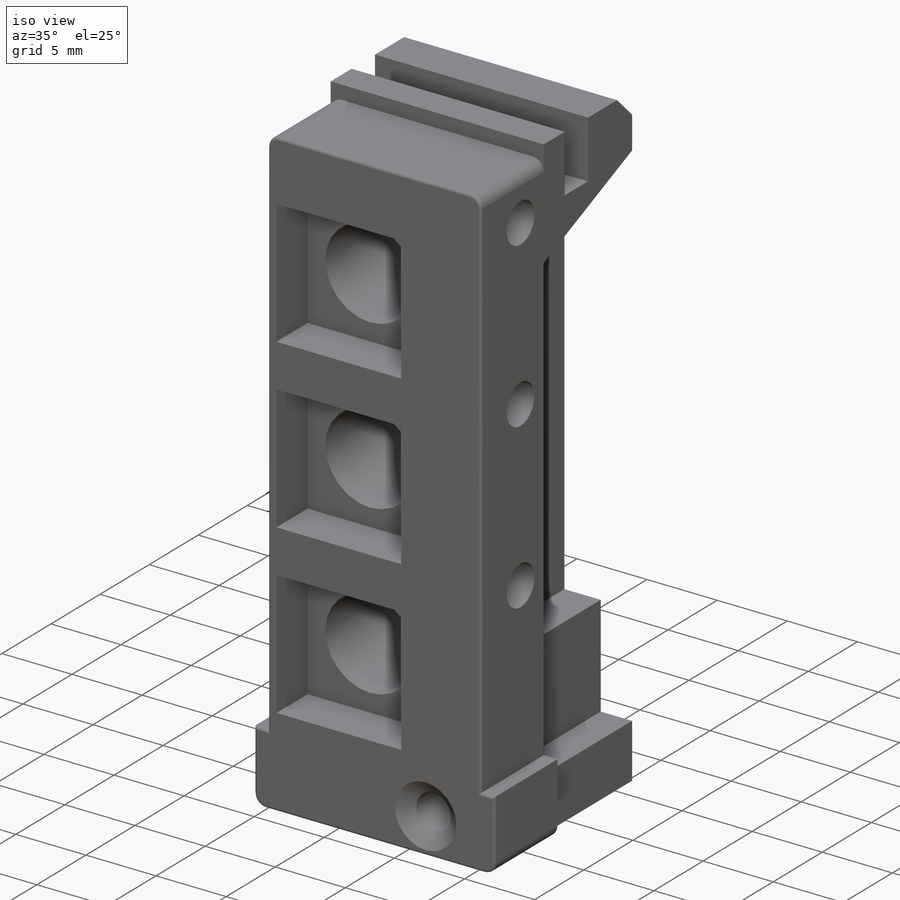
[diagram: iso view]
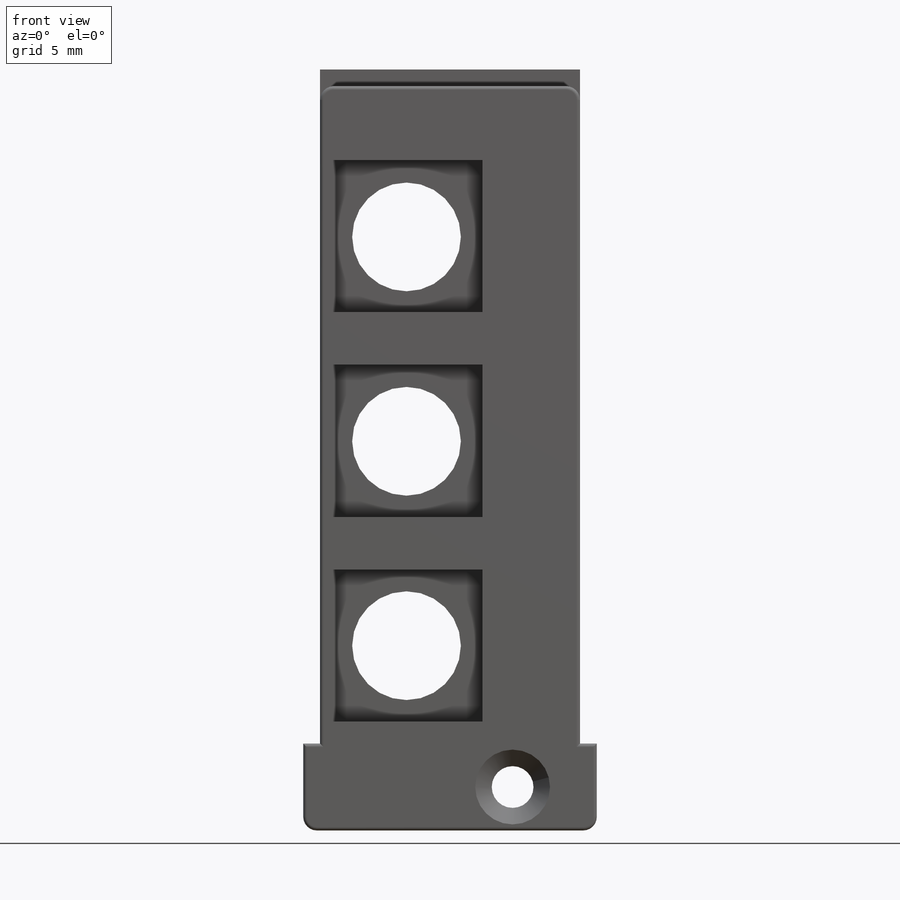
[diagram: front view]
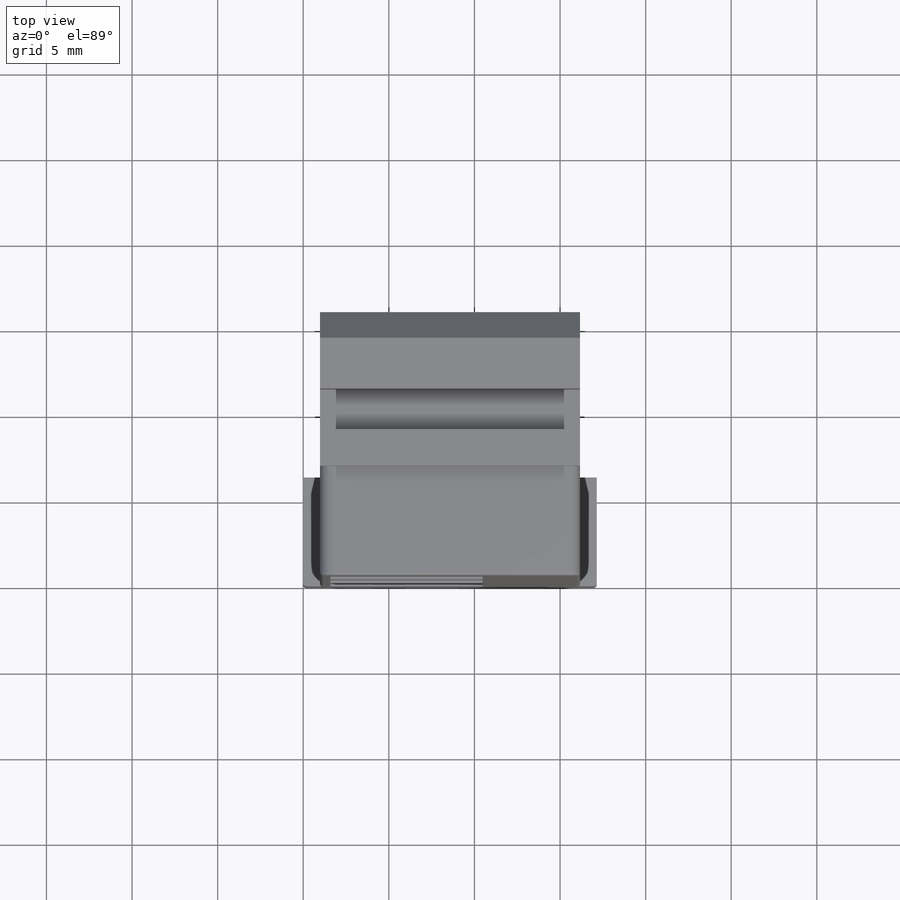
[diagram: top view]
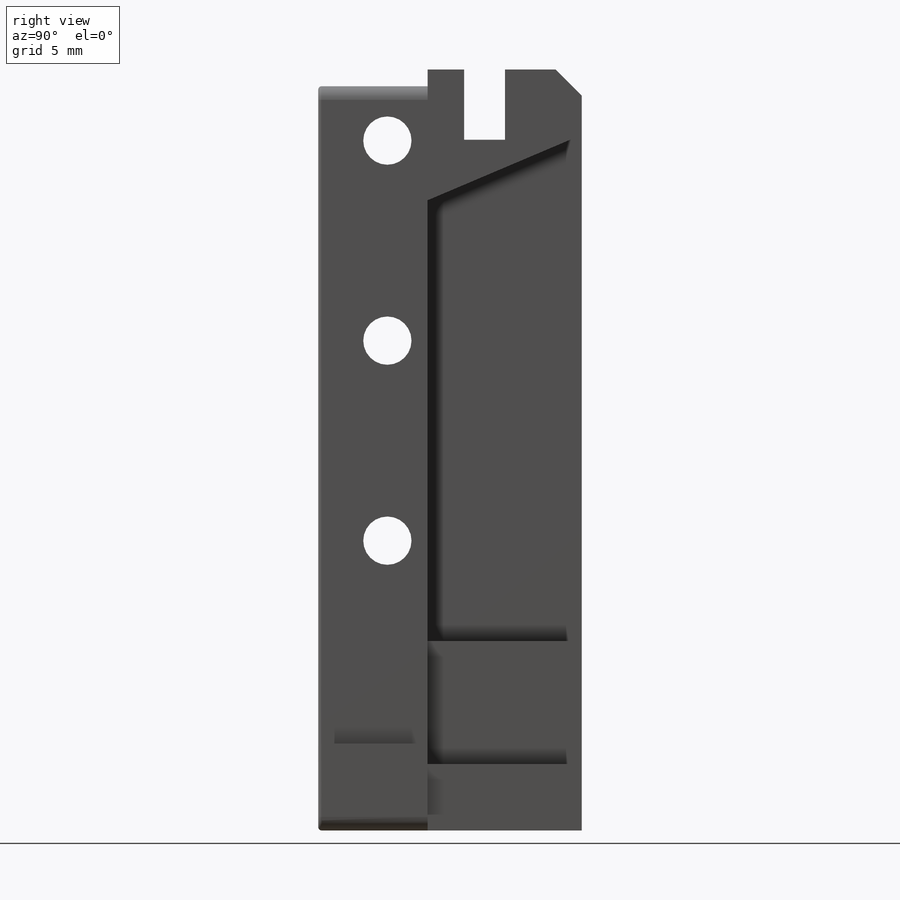
[diagram: right view]
SOLIDWORKS PART (.sldprt)
format: sldprt  version: not decoded by parser v0  size: 489,984 bytes
history: native  units: mm
features: sketch x13, cut_extrude x8, fillet x2, material x1, extrude x1, chamfer x1, hole x1, plane x1 (+16 scaffold rows collapsed)
feature tree (44):
  scaffold x16  (default folders/planes/origin — collapsed)
  material  "Material <not specified>"
  sketch  "Sketch1"  dims[D1=17.145mm D2=44.45mm]
  extrude  "Extrude1"  Depth=15.3924mm
  sketch  "Sketch2"  dims[D1=0.9779mm D2=5.08mm]
  cut_extrude  "Extrude2"  Depth=6.3881mm
  sketch  "Sketch5"  dims[D1=0.0mm D2=3.8608mm D3=10.3632mm D4=11.0617mm D5=12.954mm D6=7.6454mm]
  cut_extrude  "Extrude7"  [1 undecoded]
  sketch  "Sketch6"
  cut_extrude  "Extrude8"  [1 undecoded]
  sketch  "Sketch7"  dims[D1=2.1336mm D2=2.3876mm D3=4.1021mm]
  cut_extrude  "Extrude9"  [1 undecoded]
  chamfer  "Chamfer1"  Distance=1.524mm Angle=45deg
  sketch  "Sketch9"  dims[D1=4.6482mm D2=36.6522mm D3=0.9271mm D4=8.0645mm]
  cut_extrude  "Extrude11"  Depth=0.254mm
  sketch  "Sketch11"  dims[D1=3.937mm D2=2.54mm]
  hole  "CSK for #2 Flat Head Machine Screw (100)1"  Diameter=2.4384mm Depth=15.3924mm
  sketch  "3DSketch3"
  sketch  "Sketch14"  dims[hole-wizard template sketch: 55 standard entries collapsed; hole parameters kept: c17.Thru Hole Depth=15.3924mm c17.Near C'Sink Dia.=4.3688mm c17.D4=~3.666174mm c17.Near C'Sink Angle=100.0deg]
  plane  "Plane1"
  sketch  "Sketch19"  dims[c1.D3=2.8194mm c1.D4=2.8194mm c1.D5=2.8194mm c1.D6=2.8194mm c1.D7=2.8194mm c2.D6=11.684mm c2.D7=11.684mm c2.D1=4.0386mm c2.D2=3.175mm]
  cut_extrude  "Extrude14"  [1 undecoded]
  sketch  "Sketch15"  dims[D1=6.35mm D2=8.89mm D3=5.6896mm D4=8.89mm D5=3.0734mm]
  cut_extrude  "Extrude12"  Depth=3.175mm
  sketch  "Sketch16"  dims[D1=6.35mm]
  cut_extrude  "Extrude13"  [1 undecoded]
  fillet  "Fillet1"  Radius=0.198437mm
  fillet  "Fillet2"  Radius=0.79375mm
  sketch  "Sketch17"  dims[D1=2.54mm]
decode coverage: 19 of 26 modeling features carry decoded parameters
note: ~ marks probable driven/reference dimensions
note: 5 parameter values undecoded
summary: no parameter record found for 5 features
note: suppression state not decoded; provenance and decode notes live in map.json
